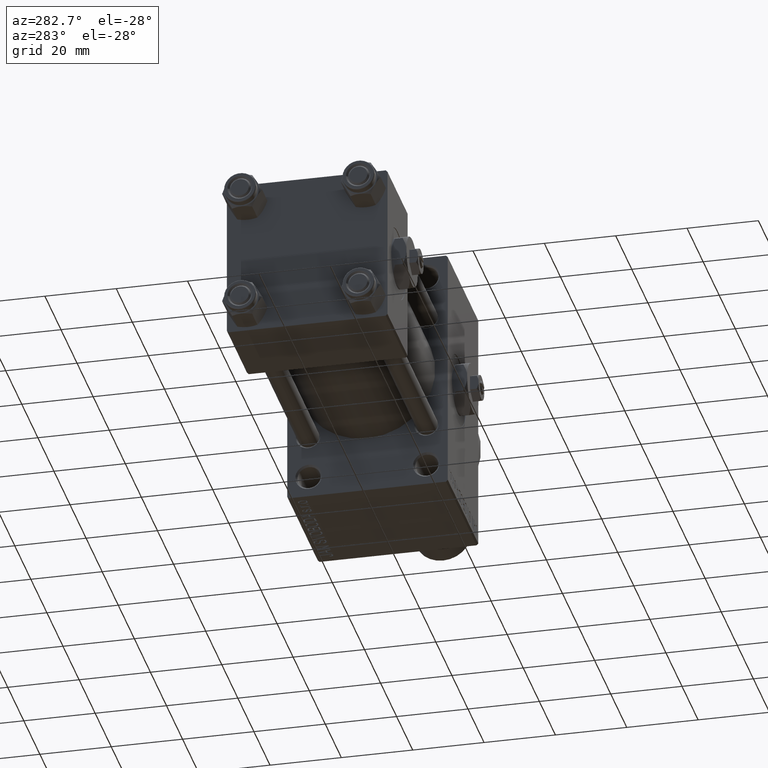
[diagram: clean part render]
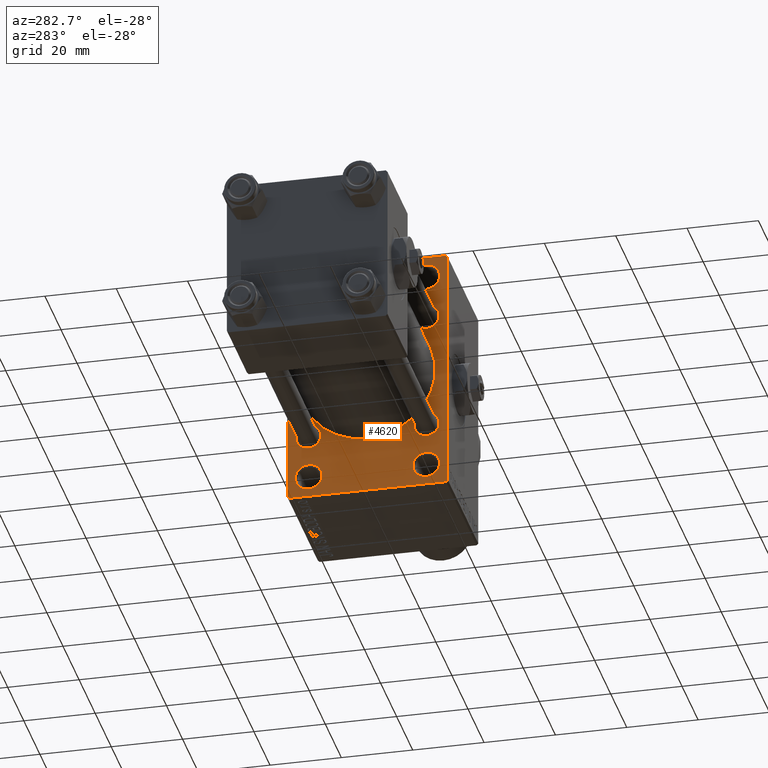
[diagram: same view with one face highlighted and labeled with its STEP entity id]
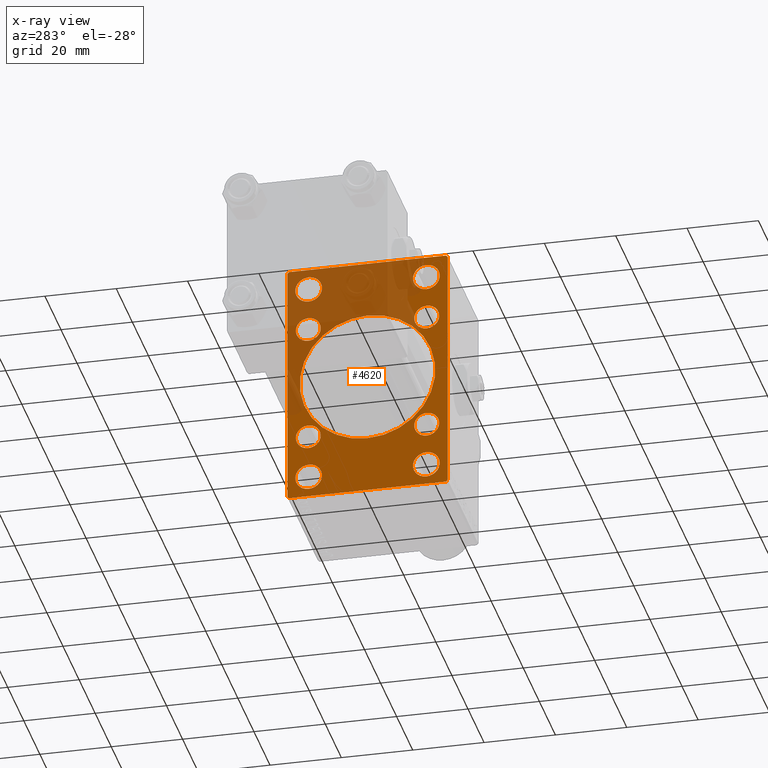
[diagram: x-ray of the same camera — body ghosted, the highlighted face saturated]
A machine part, auxiliary view. The second image highlights one B-rep face of the part: STEP entity #4620.
The next image is the same camera in x-ray: the body ghosted, the highlighted face saturated — about 41% of this face is hidden behind the body in this view.
In plain terms, the highlighted planar face has unit normal (-1, 0, 0).
Its self-contained STEP definition (entity closure, byte-faithful):
#380 = ORIENTED_EDGE ( 'NONE', *, *, #8191, .T. ) ;
#730 = AXIS2_PLACEMENT_3D ( 'NONE', #9389, #24679, #8637 ) ;
#889 = EDGE_LOOP ( 'NONE', ( #7064, #34422 ) ) ;
#1170 = DIRECTION ( 'NONE',  ( -0.000000000000000000, 0.000000000000000000, 1.000000000000000000 ) ) ;
#1284 = EDGE_CURVE ( 'NONE', #42316, #34946, #37430, .T. ) ;
#1577 = CIRCLE ( 'NONE', #27971, 19.00000000000000000 ) ;
#1688 = EDGE_CURVE ( 'NONE', #34946, #29117, #23069, .T. ) ;
#1701 = AXIS2_PLACEMENT_3D ( 'NONE', #31212, #46484, #39479 ) ;
#1723 = EDGE_LOOP ( 'NONE', ( #3513, #380 ) ) ;
#1754 = CARTESIAN_POINT ( 'NONE',  ( 75.00000000000001421, -16.59999999999999076, 13.10000000000000142 ) ) ;
#1988 = ORIENTED_EDGE ( 'NONE', *, *, #16455, .T. ) ;
#2089 = CARTESIAN_POINT ( 'NONE',  ( 75.00000000000001421, 28.49999999999999645, -28.49999999999999645 ) ) ;
#2154 = DIRECTION ( 'NONE',  ( 0.000000000000000000, 0.7071067811865474617, -0.7071067811865474617 ) ) ;
#2408 = VERTEX_POINT ( 'NONE', #34414 ) ;
#2786 = DIRECTION ( 'NONE',  ( 1.000000000000000000, 0.000000000000000000, 0.000000000000000000 ) ) ;
#2883 = EDGE_CURVE ( 'NONE', #31160, #20934, #4649, .T. ) ;
#2899 = DIRECTION ( 'NONE',  ( 1.000000000000000000, 0.000000000000000000, 0.000000000000000000 ) ) ;
#3026 = CARTESIAN_POINT ( 'NONE',  ( 75.00000000000001421, 22.49999999999999645, 34.50000000000000000 ) ) ;
#3399 = VECTOR ( 'NONE', #4525, 1000.000000000000000 ) ;
#3475 = VERTEX_POINT ( 'NONE', #3026 ) ;
#3513 = ORIENTED_EDGE ( 'NONE', *, *, #17972, .T. ) ;
#3520 = DIRECTION ( 'NONE',  ( 0.000000000000000000, 0.000000000000000000, 1.000000000000000000 ) ) ;
#4012 = DIRECTION ( 'NONE',  ( 0.000000000000000000, -1.000000000000000000, 0.000000000000000000 ) ) ;
#4027 = CARTESIAN_POINT ( 'NONE',  ( 75.00000000000001421, 16.59999999999999787, -16.60000000000000497 ) ) ;
#4116 = CARTESIAN_POINT ( 'NONE',  ( 75.00000000000001421, -21.99999999999998934, 35.00000000000000000 ) ) ;
#4525 = DIRECTION ( 'NONE',  ( 0.000000000000000000, 0.000000000000000000, -1.000000000000000000 ) ) ;
#4620 = ADVANCED_FACE ( 'NONE', ( #13198, #43524, #20224, #23738, #4921, #39532, #16219, #35515, #5172, #47016 ), #16459, .T. ) ;
#4649 = CIRCLE ( 'NONE', #14282, 3.749999999999933831 ) ;
#4921 = FACE_BOUND ( 'NONE', #1723, .T. ) ;
#5172 = FACE_BOUND ( 'NONE', #16759, .T. ) ;
#5605 = CIRCLE ( 'NONE', #40859, 3.749999999999937383 ) ;
#5876 = CARTESIAN_POINT ( 'NONE',  ( 75.00000000000001421, 22.49999999999999645, 35.00000000000000000 ) ) ;
#6185 = DIRECTION ( 'NONE',  ( 0.000000000000000000, 0.000000000000000000, 1.000000000000000000 ) ) ;
#6189 = VECTOR ( 'NONE', #33405, 1000.000000000000114 ) ;
#6982 = ORIENTED_EDGE ( 'NONE', *, *, #49321, .F. ) ;
#7064 = ORIENTED_EDGE ( 'NONE', *, *, #42907, .T. ) ;
#7139 = CARTESIAN_POINT ( 'NONE',  ( 75.00000000000001421, -16.50000000000000000, 25.25000000000007816 ) ) ;
#7248 = CARTESIAN_POINT ( 'NONE',  ( 75.00000000000001421, 22.49999999999999645, 35.00000000000000000 ) ) ;
#7961 = EDGE_LOOP ( 'NONE', ( #46155, #12832 ) ) ;
#8191 = EDGE_CURVE ( 'NONE', #36759, #2408, #19929, .T. ) ;
#8241 = VERTEX_POINT ( 'NONE', #47961 ) ;
#8412 = EDGE_CURVE ( 'NONE', #29117, #38413, #46190, .T. ) ;
#8637 = DIRECTION ( 'NONE',  ( 0.000000000000000000, 0.000000000000000000, 1.000000000000000000 ) ) ;
#8842 = VERTEX_POINT ( 'NONE', #19070 ) ;
#9100 = EDGE_CURVE ( 'NONE', #24658, #22359, #1577, .T. ) ;
#9389 = CARTESIAN_POINT ( 'NONE',  ( 75.00000000000001421, -16.59999999999999076, 16.60000000000000853 ) ) ;
#9660 = CARTESIAN_POINT ( 'NONE',  ( 75.00000000000001421, -16.50000000000000000, -25.25000000000005684 ) ) ;
#9718 = DIRECTION ( 'NONE',  ( 1.000000000000000000, 0.000000000000000000, 0.000000000000000000 ) ) ;
#10096 = VERTEX_POINT ( 'NONE', #32403 ) ;
#10097 = ORIENTED_EDGE ( 'NONE', *, *, #1284, .T. ) ;
#10254 = ORIENTED_EDGE ( 'NONE', *, *, #41367, .T. ) ;
#11021 = DIRECTION ( 'NONE',  ( 0.000000000000000000, 0.000000000000000000, -1.000000000000000000 ) ) ;
#11296 = CARTESIAN_POINT ( 'NONE',  ( 75.00000000000001421, -28.49999999999999645, 28.49999999999999645 ) ) ;
#11378 = DIRECTION ( 'NONE',  ( 0.000000000000000000, -0.7071067811865376918, 0.7071067811865574537 ) ) ;
#11398 = DIRECTION ( 'NONE',  ( 0.000000000000000000, 0.000000000000000000, 1.000000000000000000 ) ) ;
#11533 = EDGE_LOOP ( 'NONE', ( #39972, #26493 ) ) ;
#11846 = CIRCLE ( 'NONE', #22932, 3.749999999999937383 ) ;
#11861 = VECTOR ( 'NONE', #4012, 1000.000000000000000 ) ;
#11997 = ORIENTED_EDGE ( 'NONE', *, *, #18719, .T. ) ;
#12119 = CARTESIAN_POINT ( 'NONE',  ( 75.00000000000001421, 22.49999999999999645, -34.50000000000000000 ) ) ;
#12832 = ORIENTED_EDGE ( 'NONE', *, *, #39720, .T. ) ;
#12841 = EDGE_CURVE ( 'NONE', #13534, #42789, #25692, .T. ) ;
#12870 = CARTESIAN_POINT ( 'NONE',  ( 75.00000000000001421, -2.602085213965210642E-15, 19.00000000000000000 ) ) ;
#13181 = VERTEX_POINT ( 'NONE', #7139 ) ;
#13198 = FACE_BOUND ( 'NONE', #11533, .T. ) ;
#13534 = VERTEX_POINT ( 'NONE', #35897 ) ;
#13593 = CARTESIAN_POINT ( 'NONE',  ( 75.00000000000001421, -2.602085213965210642E-15, 0.000000000000000000 ) ) ;
#13683 = AXIS2_PLACEMENT_3D ( 'NONE', #40792, #9718, #6185 ) ;
#13739 = AXIS2_PLACEMENT_3D ( 'NONE', #4027, #42866, #3520 ) ;
#14282 = AXIS2_PLACEMENT_3D ( 'NONE', #18001, #36828, #48559 ) ;
#14529 = LINE ( 'NONE', #7248, #41671 ) ;
#14728 = EDGE_CURVE ( 'NONE', #37279, #26487, #40978, .T. ) ;
#15100 = CARTESIAN_POINT ( 'NONE',  ( 75.00000000000001421, 16.50000000000000000, -28.99999999999999289 ) ) ;
#15425 = CIRCLE ( 'NONE', #39442, 3.500000000000006661 ) ;
#15777 = AXIS2_PLACEMENT_3D ( 'NONE', #16029, #46834, #31315 ) ;
#15844 = CARTESIAN_POINT ( 'NONE',  ( 75.00000000000001421, -21.99999999999997513, -35.00000000000000000 ) ) ;
#16029 = CARTESIAN_POINT ( 'NONE',  ( 75.00000000000001421, -16.50000000000000000, 29.00000000000000711 ) ) ;
#16219 = FACE_BOUND ( 'NONE', #32237, .T. ) ;
#16263 = DIRECTION ( 'NONE',  ( 1.000000000000000000, 0.000000000000000000, 0.000000000000000000 ) ) ;
#16421 = EDGE_LOOP ( 'NONE', ( #21781, #42357, #6982, #30541, #41182, #17611, #39141, #10097 ) ) ;
#16455 = EDGE_CURVE ( 'NONE', #8241, #37191, #15425, .T. ) ;
#16459 = PLANE ( 'NONE',  #22301 ) ;
#16531 = DIRECTION ( 'NONE',  ( 0.000000000000000000, 0.000000000000000000, 1.000000000000000000 ) ) ;
#16759 = EDGE_LOOP ( 'NONE', ( #37312, #22682 ) ) ;
#16865 = DIRECTION ( 'NONE',  ( 1.000000000000000000, 0.000000000000000000, 0.000000000000000000 ) ) ;
#16893 = AXIS2_PLACEMENT_3D ( 'NONE', #15100, #18607, #30391 ) ;
#17240 = CARTESIAN_POINT ( 'NONE',  ( 75.00000000000001421, 16.50000000000000000, 25.25000000000007461 ) ) ;
#17611 = ORIENTED_EDGE ( 'NONE', *, *, #32585, .T. ) ;
#17657 = AXIS2_PLACEMENT_3D ( 'NONE', #19885, #22663, #11398 ) ;
#17771 = CIRCLE ( 'NONE', #18557, 3.500000000000006661 ) ;
#17916 = CARTESIAN_POINT ( 'NONE',  ( 75.00000000000001421, -16.50000000000000000, -28.99999999999999289 ) ) ;
#17972 = EDGE_CURVE ( 'NONE', #2408, #36759, #31484, .T. ) ;
#18001 = CARTESIAN_POINT ( 'NONE',  ( 75.00000000000001421, 16.50000000000000000, 29.00000000000000355 ) ) ;
#18274 = CARTESIAN_POINT ( 'NONE',  ( 75.00000000000001421, -16.59999999999999076, 16.60000000000000853 ) ) ;
#18475 = AXIS2_PLACEMENT_3D ( 'NONE', #43739, #44236, #43493 ) ;
#18557 = AXIS2_PLACEMENT_3D ( 'NONE', #35804, #16263, #31549 ) ;
#18607 = DIRECTION ( 'NONE',  ( 1.000000000000000000, 0.000000000000000000, 0.000000000000000000 ) ) ;
#18719 = EDGE_CURVE ( 'NONE', #8842, #21320, #19396, .T. ) ;
#18864 = EDGE_CURVE ( 'NONE', #43385, #22908, #17771, .T. ) ;
#18941 = CARTESIAN_POINT ( 'NONE',  ( 75.00000000000001421, -2.602085213965210642E-15, 0.000000000000000000 ) ) ;
#19070 = CARTESIAN_POINT ( 'NONE',  ( 75.00000000000001421, -16.50000000000000000, -32.74999999999992895 ) ) ;
#19396 = CIRCLE ( 'NONE', #40199, 3.749999999999937383 ) ;
#19529 = EDGE_LOOP ( 'NONE', ( #27813, #1988 ) ) ;
#19769 = EDGE_LOOP ( 'NONE', ( #39937, #38920 ) ) ;
#19773 = CARTESIAN_POINT ( 'NONE',  ( 75.00000000000001421, -16.50000000000000000, -28.99999999999999289 ) ) ;
#19885 = CARTESIAN_POINT ( 'NONE',  ( 75.00000000000001421, -16.50000000000000000, 29.00000000000000711 ) ) ;
#19929 = CIRCLE ( 'NONE', #730, 3.500000000000003109 ) ;
#20224 = FACE_BOUND ( 'NONE', #19769, .T. ) ;
#20301 = DIRECTION ( 'NONE',  ( 1.000000000000000000, 0.000000000000000000, 0.000000000000000000 ) ) ;
#20470 = CARTESIAN_POINT ( 'NONE',  ( 75.00000000000001421, 0.000000000000000000, 0.000000000000000000 ) ) ;
#20669 = DIRECTION ( 'NONE',  ( 0.000000000000000000, -1.000000000000000000, 0.000000000000000000 ) ) ;
#20934 = VERTEX_POINT ( 'NONE', #17240 ) ;
#21320 = VERTEX_POINT ( 'NONE', #9660 ) ;
#21620 = EDGE_CURVE ( 'NONE', #3475, #42316, #14529, .T. ) ;
#21671 = CIRCLE ( 'NONE', #18475, 3.500000000000006661 ) ;
#21781 = ORIENTED_EDGE ( 'NONE', *, *, #1688, .T. ) ;
#22196 = LINE ( 'NONE', #33477, #27040 ) ;
#22301 = AXIS2_PLACEMENT_3D ( 'NONE', #20470, #35760, #1170 ) ;
#22359 = VERTEX_POINT ( 'NONE', #12870 ) ;
#22594 = CARTESIAN_POINT ( 'NONE',  ( 75.00000000000001421, -2.752562955852396712E-16, -19.00000000000000000 ) ) ;
#22663 = DIRECTION ( 'NONE',  ( 1.000000000000000000, 0.000000000000000000, 0.000000000000000000 ) ) ;
#22682 = ORIENTED_EDGE ( 'NONE', *, *, #9100, .T. ) ;
#22908 = VERTEX_POINT ( 'NONE', #25823 ) ;
#22923 = DIRECTION ( 'NONE',  ( 0.000000000000000000, 0.000000000000000000, 1.000000000000000000 ) ) ;
#22932 = AXIS2_PLACEMENT_3D ( 'NONE', #17916, #32967, #41487 ) ;
#23069 = LINE ( 'NONE', #37623, #11861 ) ;
#23184 = EDGE_LOOP ( 'NONE', ( #38349, #11997 ) ) ;
#23738 = FACE_BOUND ( 'NONE', #7961, .T. ) ;
#24658 = VERTEX_POINT ( 'NONE', #22594 ) ;
#24679 = DIRECTION ( 'NONE',  ( 1.000000000000000000, 0.000000000000000000, 0.000000000000000000 ) ) ;
#25692 = CIRCLE ( 'NONE', #16893, 3.749999999999937383 ) ;
#25745 = CIRCLE ( 'NONE', #1701, 3.500000000000006661 ) ;
#25804 = DIRECTION ( 'NONE',  ( 1.000000000000000000, 0.000000000000000000, 0.000000000000000000 ) ) ;
#25823 = CARTESIAN_POINT ( 'NONE',  ( 75.00000000000001421, 16.59999999999999787, 20.10000000000001208 ) ) ;
#26487 = VERTEX_POINT ( 'NONE', #29032 ) ;
#26493 = ORIENTED_EDGE ( 'NONE', *, *, #30899, .T. ) ;
#26576 = DIRECTION ( 'NONE',  ( -0.000000000000000000, 0.7071067811865474617, 0.7071067811865474617 ) ) ;
#27040 = VECTOR ( 'NONE', #2154, 1000.000000000000114 ) ;
#27217 = CARTESIAN_POINT ( 'NONE',  ( 75.00000000000001421, 16.59999999999999787, -20.10000000000000853 ) ) ;
#27283 = AXIS2_PLACEMENT_3D ( 'NONE', #45975, #42469, #22923 ) ;
#27328 = EDGE_CURVE ( 'NONE', #44855, #39835, #30585, .T. ) ;
#27813 = ORIENTED_EDGE ( 'NONE', *, *, #43245, .T. ) ;
#27927 = LINE ( 'NONE', #5876, #49451 ) ;
#27971 = AXIS2_PLACEMENT_3D ( 'NONE', #18941, #2899, #29235 ) ;
#28068 = CIRCLE ( 'NONE', #17657, 3.749999999999930278 ) ;
#29032 = CARTESIAN_POINT ( 'NONE',  ( 75.00000000000001421, 16.59999999999999787, -13.09999999999999787 ) ) ;
#29117 = VERTEX_POINT ( 'NONE', #15844 ) ;
#29235 = DIRECTION ( 'NONE',  ( 0.000000000000000000, 0.000000000000000000, -1.000000000000000000 ) ) ;
#29555 = DIRECTION ( 'NONE',  ( 0.000000000000000000, 0.000000000000000000, 1.000000000000000000 ) ) ;
#30042 = EDGE_CURVE ( 'NONE', #21320, #8842, #11846, .T. ) ;
#30143 = CIRCLE ( 'NONE', #15777, 3.749999999999930278 ) ;
#30391 = DIRECTION ( 'NONE',  ( 0.000000000000000000, 0.000000000000000000, 1.000000000000000000 ) ) ;
#30541 = ORIENTED_EDGE ( 'NONE', *, *, #27328, .T. ) ;
#30585 = LINE ( 'NONE', #11296, #49383 ) ;
#30615 = LINE ( 'NONE', #30868, #3399 ) ;
#30868 = CARTESIAN_POINT ( 'NONE',  ( 75.00000000000001421, -22.50000000000000355, 35.00000000000000000 ) ) ;
#30899 = EDGE_CURVE ( 'NONE', #13181, #10096, #30143, .T. ) ;
#31160 = VERTEX_POINT ( 'NONE', #44801 ) ;
#31212 = CARTESIAN_POINT ( 'NONE',  ( 75.00000000000001421, 16.59999999999999787, -16.60000000000000497 ) ) ;
#31291 = CARTESIAN_POINT ( 'NONE',  ( 75.00000000000001421, 16.50000000000000000, -25.25000000000005684 ) ) ;
#31315 = DIRECTION ( 'NONE',  ( 0.000000000000000000, 0.000000000000000000, 1.000000000000000000 ) ) ;
#31484 = CIRCLE ( 'NONE', #37907, 3.500000000000003109 ) ;
#31549 = DIRECTION ( 'NONE',  ( 0.000000000000000000, 0.000000000000000000, 1.000000000000000000 ) ) ;
#32237 = EDGE_LOOP ( 'NONE', ( #10254, #34295 ) ) ;
#32403 = CARTESIAN_POINT ( 'NONE',  ( 75.00000000000001421, -16.50000000000000000, 32.74999999999993605 ) ) ;
#32585 = EDGE_CURVE ( 'NONE', #42095, #3475, #22196, .T. ) ;
#32967 = DIRECTION ( 'NONE',  ( 1.000000000000000000, 0.000000000000000000, 0.000000000000000000 ) ) ;
#33405 = DIRECTION ( 'NONE',  ( -0.000000000000000000, -0.7071067811865474617, -0.7071067811865474617 ) ) ;
#33477 = CARTESIAN_POINT ( 'NONE',  ( 75.00000000000001421, 28.49999999999999645, 28.49999999999999645 ) ) ;
#33500 = CARTESIAN_POINT ( 'NONE',  ( 75.00000000000001421, -22.50000000000000355, 34.50000000000000000 ) ) ;
#33528 = EDGE_CURVE ( 'NONE', #42095, #39835, #27927, .T. ) ;
#34295 = ORIENTED_EDGE ( 'NONE', *, *, #14728, .T. ) ;
#34369 = DIRECTION ( 'NONE',  ( 0.000000000000000000, 0.000000000000000000, 1.000000000000000000 ) ) ;
#34414 = CARTESIAN_POINT ( 'NONE',  ( 75.00000000000001421, -16.59999999999999076, 20.10000000000001208 ) ) ;
#34422 = ORIENTED_EDGE ( 'NONE', *, *, #18864, .T. ) ;
#34847 = CARTESIAN_POINT ( 'NONE',  ( 75.00000000000001421, 21.99999999999999645, -35.00000000000000000 ) ) ;
#34877 = CARTESIAN_POINT ( 'NONE',  ( 75.00000000000001421, 16.59999999999999787, 13.09999999999999609 ) ) ;
#34946 = VERTEX_POINT ( 'NONE', #34847 ) ;
#35515 = FACE_BOUND ( 'NONE', #19529, .T. ) ;
#35760 = DIRECTION ( 'NONE',  ( -1.000000000000000000, 0.000000000000000000, -0.000000000000000000 ) ) ;
#35804 = CARTESIAN_POINT ( 'NONE',  ( 75.00000000000001421, 16.59999999999999787, 16.60000000000000497 ) ) ;
#35897 = CARTESIAN_POINT ( 'NONE',  ( 75.00000000000001421, 16.50000000000000000, -32.74999999999992895 ) ) ;
#36234 = CIRCLE ( 'NONE', #37852, 19.00000000000000000 ) ;
#36759 = VERTEX_POINT ( 'NONE', #1754 ) ;
#36828 = DIRECTION ( 'NONE',  ( 1.000000000000000000, 0.000000000000000000, 0.000000000000000000 ) ) ;
#37191 = VERTEX_POINT ( 'NONE', #41279 ) ;
#37279 = VERTEX_POINT ( 'NONE', #27217 ) ;
#37312 = ORIENTED_EDGE ( 'NONE', *, *, #48972, .T. ) ;
#37430 = LINE ( 'NONE', #2089, #6189 ) ;
#37623 = CARTESIAN_POINT ( 'NONE',  ( 75.00000000000001421, 22.49999999999999645, -35.00000000000000000 ) ) ;
#37713 = CIRCLE ( 'NONE', #27283, 3.749999999999933831 ) ;
#37844 = EDGE_CURVE ( 'NONE', #42789, #13534, #5605, .T. ) ;
#37852 = AXIS2_PLACEMENT_3D ( 'NONE', #13593, #16865, #47426 ) ;
#37907 = AXIS2_PLACEMENT_3D ( 'NONE', #18274, #25804, #29555 ) ;
#38349 = ORIENTED_EDGE ( 'NONE', *, *, #30042, .T. ) ;
#38413 = VERTEX_POINT ( 'NONE', #41530 ) ;
#38886 = EDGE_CURVE ( 'NONE', #10096, #13181, #28068, .T. ) ;
#38920 = ORIENTED_EDGE ( 'NONE', *, *, #12841, .T. ) ;
#39141 = ORIENTED_EDGE ( 'NONE', *, *, #21620, .T. ) ;
#39442 = AXIS2_PLACEMENT_3D ( 'NONE', #47586, #20301, #16531 ) ;
#39479 = DIRECTION ( 'NONE',  ( 0.000000000000000000, 0.000000000000000000, 1.000000000000000000 ) ) ;
#39532 = FACE_BOUND ( 'NONE', #889, .T. ) ;
#39720 = EDGE_CURVE ( 'NONE', #20934, #31160, #37713, .T. ) ;
#39835 = VERTEX_POINT ( 'NONE', #4116 ) ;
#39937 = ORIENTED_EDGE ( 'NONE', *, *, #37844, .T. ) ;
#39952 = VECTOR ( 'NONE', #11378, 999.9999999999998863 ) ;
#39972 = ORIENTED_EDGE ( 'NONE', *, *, #38886, .T. ) ;
#40199 = AXIS2_PLACEMENT_3D ( 'NONE', #19773, #42106, #42347 ) ;
#40792 = CARTESIAN_POINT ( 'NONE',  ( 75.00000000000001421, 16.59999999999999787, 16.60000000000000497 ) ) ;
#40859 = AXIS2_PLACEMENT_3D ( 'NONE', #45896, #2786, #34369 ) ;
#40978 = CIRCLE ( 'NONE', #13739, 3.500000000000006661 ) ;
#41182 = ORIENTED_EDGE ( 'NONE', *, *, #33528, .F. ) ;
#41279 = CARTESIAN_POINT ( 'NONE',  ( 75.00000000000001421, -16.59999999999999076, -13.10000000000000142 ) ) ;
#41367 = EDGE_CURVE ( 'NONE', #26487, #37279, #25745, .T. ) ;
#41487 = DIRECTION ( 'NONE',  ( 0.000000000000000000, 0.000000000000000000, 1.000000000000000000 ) ) ;
#41530 = CARTESIAN_POINT ( 'NONE',  ( 75.00000000000001421, -22.50000000000000355, -34.49999999999997158 ) ) ;
#41671 = VECTOR ( 'NONE', #11021, 1000.000000000000000 ) ;
#41705 = CARTESIAN_POINT ( 'NONE',  ( 75.00000000000001421, -28.50000000000030198, -28.49999999999951328 ) ) ;
#42095 = VERTEX_POINT ( 'NONE', #47712 ) ;
#42106 = DIRECTION ( 'NONE',  ( 1.000000000000000000, 0.000000000000000000, 0.000000000000000000 ) ) ;
#42316 = VERTEX_POINT ( 'NONE', #12119 ) ;
#42347 = DIRECTION ( 'NONE',  ( 0.000000000000000000, 0.000000000000000000, 1.000000000000000000 ) ) ;
#42357 = ORIENTED_EDGE ( 'NONE', *, *, #8412, .T. ) ;
#42469 = DIRECTION ( 'NONE',  ( 1.000000000000000000, 0.000000000000000000, 0.000000000000000000 ) ) ;
#42789 = VERTEX_POINT ( 'NONE', #31291 ) ;
#42866 = DIRECTION ( 'NONE',  ( 1.000000000000000000, 0.000000000000000000, 0.000000000000000000 ) ) ;
#42907 = EDGE_CURVE ( 'NONE', #22908, #43385, #47260, .T. ) ;
#43245 = EDGE_CURVE ( 'NONE', #37191, #8241, #21671, .T. ) ;
#43385 = VERTEX_POINT ( 'NONE', #34877 ) ;
#43493 = DIRECTION ( 'NONE',  ( 0.000000000000000000, 0.000000000000000000, 1.000000000000000000 ) ) ;
#43524 = FACE_BOUND ( 'NONE', #23184, .T. ) ;
#43739 = CARTESIAN_POINT ( 'NONE',  ( 75.00000000000001421, -16.59999999999999076, -16.60000000000000853 ) ) ;
#44236 = DIRECTION ( 'NONE',  ( 1.000000000000000000, 0.000000000000000000, 0.000000000000000000 ) ) ;
#44801 = CARTESIAN_POINT ( 'NONE',  ( 75.00000000000001421, 16.50000000000000000, 32.74999999999992895 ) ) ;
#44855 = VERTEX_POINT ( 'NONE', #33500 ) ;
#45896 = CARTESIAN_POINT ( 'NONE',  ( 75.00000000000001421, 16.50000000000000000, -28.99999999999999289 ) ) ;
#45975 = CARTESIAN_POINT ( 'NONE',  ( 75.00000000000001421, 16.50000000000000000, 29.00000000000000355 ) ) ;
#46155 = ORIENTED_EDGE ( 'NONE', *, *, #2883, .T. ) ;
#46190 = LINE ( 'NONE', #41705, #39952 ) ;
#46484 = DIRECTION ( 'NONE',  ( 1.000000000000000000, 0.000000000000000000, 0.000000000000000000 ) ) ;
#46834 = DIRECTION ( 'NONE',  ( 1.000000000000000000, 0.000000000000000000, 0.000000000000000000 ) ) ;
#47016 = FACE_OUTER_BOUND ( 'NONE', #16421, .T. ) ;
#47260 = CIRCLE ( 'NONE', #13683, 3.500000000000006661 ) ;
#47426 = DIRECTION ( 'NONE',  ( 0.000000000000000000, 0.000000000000000000, -1.000000000000000000 ) ) ;
#47586 = CARTESIAN_POINT ( 'NONE',  ( 75.00000000000001421, -16.59999999999999076, -16.60000000000000853 ) ) ;
#47712 = CARTESIAN_POINT ( 'NONE',  ( 75.00000000000001421, 21.99999999999999645, 35.00000000000000000 ) ) ;
#47961 = CARTESIAN_POINT ( 'NONE',  ( 75.00000000000001421, -16.59999999999999076, -20.10000000000001208 ) ) ;
#48559 = DIRECTION ( 'NONE',  ( 0.000000000000000000, 0.000000000000000000, 1.000000000000000000 ) ) ;
#48972 = EDGE_CURVE ( 'NONE', #22359, #24658, #36234, .T. ) ;
#49321 = EDGE_CURVE ( 'NONE', #44855, #38413, #30615, .T. ) ;
#49383 = VECTOR ( 'NONE', #26576, 1000.000000000000114 ) ;
#49451 = VECTOR ( 'NONE', #20669, 1000.000000000000000 ) ;